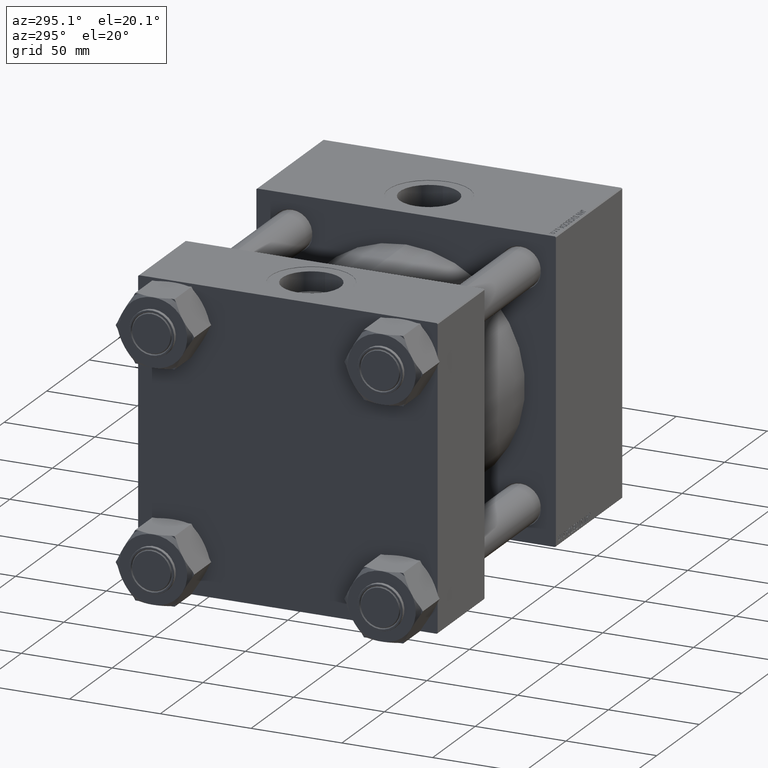
[diagram: clean part render]
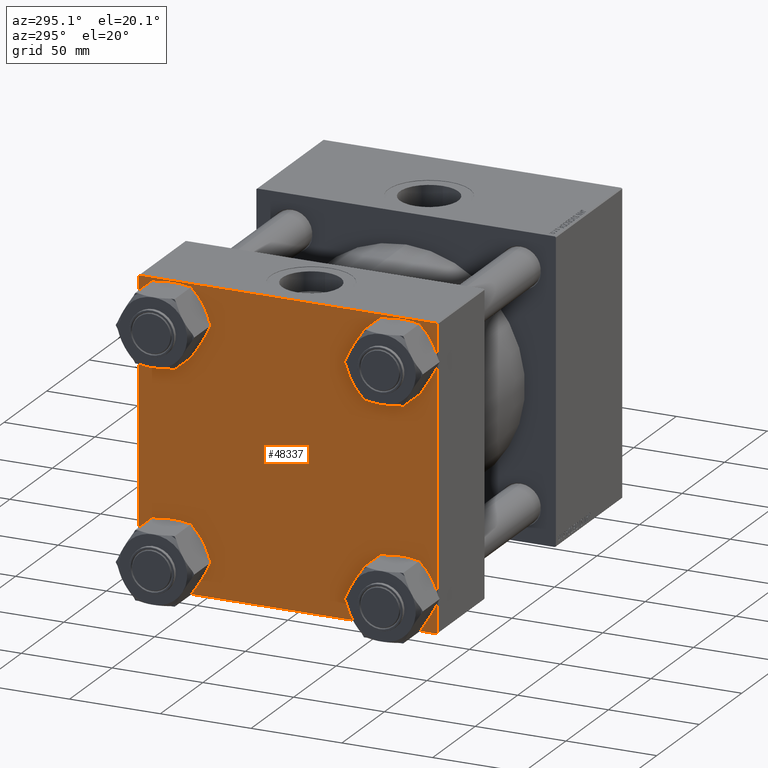
[diagram: same view with one face highlighted and labeled with its STEP entity id]
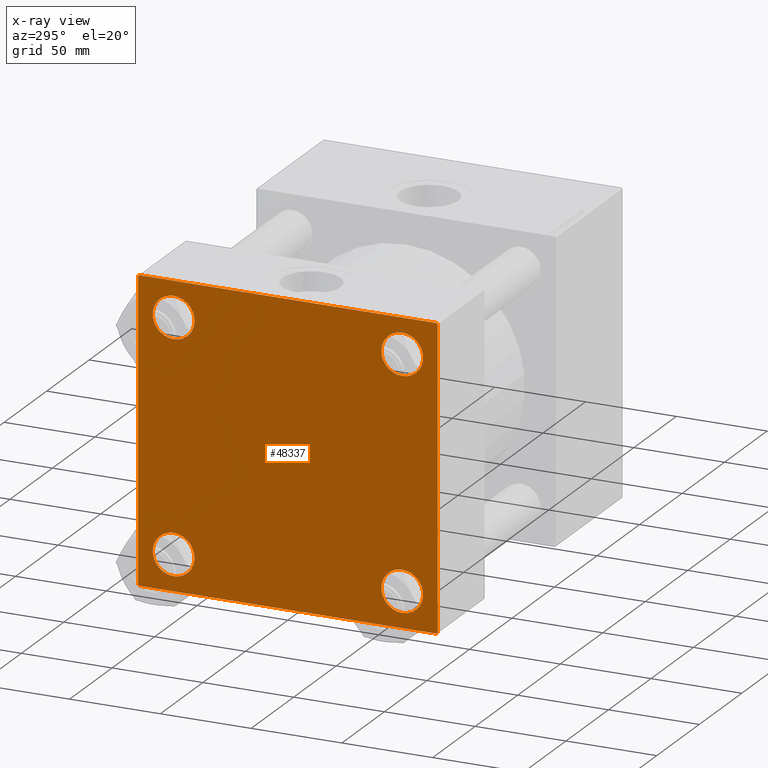
[diagram: x-ray of the same camera — body ghosted, the highlighted face saturated]
A machine part, auxiliary view. The second image highlights one B-rep face of the part: STEP entity #48337.
The next image is the same camera in x-ray: the body ghosted, the highlighted face saturated — about 0% of this face is hidden behind the body in this view.
In plain terms, the highlighted planar face has unit normal (-1, 0, 0).
Its self-contained STEP definition (entity closure, byte-faithful):
#286 = EDGE_CURVE ( 'NONE', #36203, #7209, #49370, .T. ) ;
#1147 = EDGE_CURVE ( 'NONE', #6335, #44852, #47048, .T. ) ;
#1291 = DIRECTION ( 'NONE',  ( -0.000000000000000000, -0.7071067811865474617, -0.7071067811865474617 ) ) ;
#1505 = DIRECTION ( 'NONE',  ( 0.000000000000000000, 0.000000000000000000, 1.000000000000000000 ) ) ;
#1629 = DIRECTION ( 'NONE',  ( -0.000000000000000000, 0.000000000000000000, 1.000000000000000000 ) ) ;
#1751 = DIRECTION ( 'NONE',  ( 0.000000000000000000, 0.000000000000000000, 1.000000000000000000 ) ) ;
#3373 = EDGE_CURVE ( 'NONE', #32868, #14952, #11275, .T. ) ;
#3603 = CARTESIAN_POINT ( 'NONE',  ( 0.000000000000000000, 82.50000000000001421, -82.49999999999998579 ) ) ;
#3898 = CARTESIAN_POINT ( 'NONE',  ( 0.000000000000000000, -62.94999999999996732, 74.45000000000011653 ) ) ;
#5473 = ORIENTED_EDGE ( 'NONE', *, *, #47906, .T. ) ;
#5509 = DIRECTION ( 'NONE',  ( 1.000000000000000000, 0.000000000000000000, 0.000000000000000000 ) ) ;
#6335 = VERTEX_POINT ( 'NONE', #37269 ) ;
#6510 = EDGE_CURVE ( 'NONE', #14952, #32868, #30758, .T. ) ;
#6859 = CARTESIAN_POINT ( 'NONE',  ( 0.000000000000000000, -82.24999999999883471, -82.25000000000112266 ) ) ;
#7120 = DIRECTION ( 'NONE',  ( 0.000000000000000000, 0.000000000000000000, 1.000000000000000000 ) ) ;
#7209 = VERTEX_POINT ( 'NONE', #25948 ) ;
#7312 = DIRECTION ( 'NONE',  ( 0.000000000000000000, 0.000000000000000000, 1.000000000000000000 ) ) ;
#7628 = CIRCLE ( 'NONE', #33898, 11.50000000000001066 ) ;
#7817 = CARTESIAN_POINT ( 'NONE',  ( 0.000000000000000000, 62.94999999999998863, 62.95000000000000284 ) ) ;
#9181 = DIRECTION ( 'NONE',  ( 1.000000000000000000, 0.000000000000000000, 0.000000000000000000 ) ) ;
#9834 = VECTOR ( 'NONE', #38520, 1000.000000000000000 ) ;
#10070 = VECTOR ( 'NONE', #38680, 999.9999999999998863 ) ;
#10097 = FACE_OUTER_BOUND ( 'NONE', #42306, .T. ) ;
#11275 = CIRCLE ( 'NONE', #46266, 11.50000000000009415 ) ;
#11344 = VERTEX_POINT ( 'NONE', #45167 ) ;
#11582 = CIRCLE ( 'NONE', #44396, 11.50000000000009415 ) ;
#12059 = VECTOR ( 'NONE', #23703, 1000.000000000000000 ) ;
#12820 = VERTEX_POINT ( 'NONE', #34434 ) ;
#13694 = FACE_BOUND ( 'NONE', #30947, .T. ) ;
#14075 = CIRCLE ( 'NONE', #14884, 11.50000000000001066 ) ;
#14203 = FACE_BOUND ( 'NONE', #43445, .T. ) ;
#14884 = AXIS2_PLACEMENT_3D ( 'NONE', #47163, #9181, #32039 ) ;
#14952 = VERTEX_POINT ( 'NONE', #3898 ) ;
#15148 = VERTEX_POINT ( 'NONE', #34863 ) ;
#15436 = EDGE_LOOP ( 'NONE', ( #21481, #5473 ) ) ;
#15577 = AXIS2_PLACEMENT_3D ( 'NONE', #38446, #42792, #7120 ) ;
#15736 = CARTESIAN_POINT ( 'NONE',  ( 0.000000000000000000, 62.94999999999998863, -62.95000000000000284 ) ) ;
#16298 = EDGE_CURVE ( 'NONE', #15148, #12820, #22764, .T. ) ;
#16469 = CARTESIAN_POINT ( 'NONE',  ( -0.000000000000000000, 82.25000000000001421, -82.25000000000001421 ) ) ;
#20111 = CARTESIAN_POINT ( 'NONE',  ( 0.000000000000000000, -82.49999999999998579, 82.49999999999995737 ) ) ;
#20216 = CARTESIAN_POINT ( 'NONE',  ( 0.000000000000000000, 82.00000000000004263, -82.49999999999998579 ) ) ;
#20458 = CARTESIAN_POINT ( 'NONE',  ( 0.000000000000000000, -62.94999999999996732, 51.44999999999992468 ) ) ;
#21269 = CARTESIAN_POINT ( 'NONE',  ( 0.000000000000000000, -62.94999999999996732, -62.95000000000001705 ) ) ;
#21481 = ORIENTED_EDGE ( 'NONE', *, *, #16298, .T. ) ;
#21509 = EDGE_CURVE ( 'NONE', #7209, #40895, #39018, .T. ) ;
#21727 = EDGE_CURVE ( 'NONE', #6335, #22803, #37708, .T. ) ;
#21771 = CARTESIAN_POINT ( 'NONE',  ( 0.000000000000000000, 62.94999999999998863, 74.45000000000001705 ) ) ;
#21878 = EDGE_CURVE ( 'NONE', #25986, #23158, #34437, .T. ) ;
#21928 = AXIS2_PLACEMENT_3D ( 'NONE', #25655, #22317, #33374 ) ;
#22060 = CARTESIAN_POINT ( 'NONE',  ( 0.000000000000000000, 82.50000000000001421, -82.00000000000001421 ) ) ;
#22209 = ORIENTED_EDGE ( 'NONE', *, *, #6510, .T. ) ;
#22317 = DIRECTION ( 'NONE',  ( 1.000000000000000000, 0.000000000000000000, 0.000000000000000000 ) ) ;
#22478 = DIRECTION ( 'NONE',  ( 1.000000000000000000, 0.000000000000000000, 0.000000000000000000 ) ) ;
#22764 = CIRCLE ( 'NONE', #21928, 11.50000000000009415 ) ;
#22803 = VERTEX_POINT ( 'NONE', #49205 ) ;
#23158 = VERTEX_POINT ( 'NONE', #25187 ) ;
#23176 = CIRCLE ( 'NONE', #34698, 11.50000000000009415 ) ;
#23215 = AXIS2_PLACEMENT_3D ( 'NONE', #41407, #48349, #1629 ) ;
#23703 = DIRECTION ( 'NONE',  ( 0.000000000000000000, 8.410780489584520404E-17, -1.000000000000000000 ) ) ;
#24271 = CARTESIAN_POINT ( 'NONE',  ( 0.000000000000000000, -62.94999999999996732, 62.95000000000001705 ) ) ;
#24375 = CARTESIAN_POINT ( 'NONE',  ( 0.000000000000000000, -62.94999999999996732, 62.95000000000001705 ) ) ;
#24494 = ORIENTED_EDGE ( 'NONE', *, *, #286, .T. ) ;
#24857 = ORIENTED_EDGE ( 'NONE', *, *, #25967, .T. ) ;
#25187 = CARTESIAN_POINT ( 'NONE',  ( 0.000000000000000000, 62.94999999999998863, -51.44999999999991047 ) ) ;
#25655 = CARTESIAN_POINT ( 'NONE',  ( 0.000000000000000000, -62.94999999999996732, -62.95000000000001705 ) ) ;
#25948 = CARTESIAN_POINT ( 'NONE',  ( 0.000000000000000000, 82.50000000000001421, 81.99999999999998579 ) ) ;
#25967 = EDGE_CURVE ( 'NONE', #39295, #11344, #39560, .T. ) ;
#25986 = VERTEX_POINT ( 'NONE', #42882 ) ;
#26794 = VERTEX_POINT ( 'NONE', #34515 ) ;
#28284 = EDGE_CURVE ( 'NONE', #36203, #22803, #34361, .T. ) ;
#28486 = EDGE_CURVE ( 'NONE', #23158, #25986, #11582, .T. ) ;
#28852 = VECTOR ( 'NONE', #1291, 1000.000000000000114 ) ;
#29114 = EDGE_CURVE ( 'NONE', #35856, #26794, #14075, .T. ) ;
#29365 = FACE_BOUND ( 'NONE', #36628, .T. ) ;
#29527 = VECTOR ( 'NONE', #29742, 1000.000000000000114 ) ;
#29742 = DIRECTION ( 'NONE',  ( -0.000000000000000000, 0.7071067811865474617, 0.7071067811865474617 ) ) ;
#30263 = ORIENTED_EDGE ( 'NONE', *, *, #21509, .T. ) ;
#30758 = CIRCLE ( 'NONE', #41400, 11.50000000000009415 ) ;
#30947 = EDGE_LOOP ( 'NONE', ( #22209, #49714 ) ) ;
#30966 = LINE ( 'NONE', #6859, #10070 ) ;
#32039 = DIRECTION ( 'NONE',  ( 0.000000000000000000, 0.000000000000000000, 1.000000000000000000 ) ) ;
#32868 = VERTEX_POINT ( 'NONE', #20458 ) ;
#32971 = ORIENTED_EDGE ( 'NONE', *, *, #1147, .F. ) ;
#33348 = CARTESIAN_POINT ( 'NONE',  ( -0.000000000000000000, -82.24999999999997158, 82.24999999999997158 ) ) ;
#33374 = DIRECTION ( 'NONE',  ( 0.000000000000000000, 0.000000000000000000, 1.000000000000000000 ) ) ;
#33731 = VECTOR ( 'NONE', #38454, 1000.000000000000000 ) ;
#33898 = AXIS2_PLACEMENT_3D ( 'NONE', #7817, #22478, #7312 ) ;
#34361 = LINE ( 'NONE', #34858, #33731 ) ;
#34434 = CARTESIAN_POINT ( 'NONE',  ( 0.000000000000000000, -62.94999999999996732, -74.45000000000011653 ) ) ;
#34437 = CIRCLE ( 'NONE', #15577, 11.50000000000009415 ) ;
#34515 = CARTESIAN_POINT ( 'NONE',  ( 0.000000000000000000, 62.94999999999998863, 51.44999999999999574 ) ) ;
#34698 = AXIS2_PLACEMENT_3D ( 'NONE', #21269, #36943, #1751 ) ;
#34817 = ORIENTED_EDGE ( 'NONE', *, *, #47126, .T. ) ;
#34858 = CARTESIAN_POINT ( 'NONE',  ( 0.000000000000000000, 82.50000000000001421, 82.49999999999998579 ) ) ;
#34863 = CARTESIAN_POINT ( 'NONE',  ( 0.000000000000000000, -62.94999999999996732, -51.44999999999992468 ) ) ;
#34894 = CARTESIAN_POINT ( 'NONE',  ( 0.000000000000000000, -82.49999999999997158, -81.99999999999998579 ) ) ;
#34939 = DIRECTION ( 'NONE',  ( 0.000000000000000000, -1.000000000000000000, 0.000000000000000000 ) ) ;
#35257 = CARTESIAN_POINT ( 'NONE',  ( 0.000000000000000000, 82.00000000000001421, 82.49999999999998579 ) ) ;
#35856 = VERTEX_POINT ( 'NONE', #21771 ) ;
#36203 = VERTEX_POINT ( 'NONE', #35257 ) ;
#36216 = ORIENTED_EDGE ( 'NONE', *, *, #28486, .T. ) ;
#36628 = EDGE_LOOP ( 'NONE', ( #38927, #47991 ) ) ;
#36943 = DIRECTION ( 'NONE',  ( 1.000000000000000000, 0.000000000000000000, 0.000000000000000000 ) ) ;
#37049 = VECTOR ( 'NONE', #34939, 1000.000000000000000 ) ;
#37269 = CARTESIAN_POINT ( 'NONE',  ( 0.000000000000000000, -82.49999999999998579, 81.99999999999995737 ) ) ;
#37708 = LINE ( 'NONE', #33348, #29527 ) ;
#37819 = ORIENTED_EDGE ( 'NONE', *, *, #21878, .T. ) ;
#38347 = CARTESIAN_POINT ( 'NONE',  ( -0.000000000000000000, 82.25000000000000000, 82.25000000000000000 ) ) ;
#38446 = CARTESIAN_POINT ( 'NONE',  ( 0.000000000000000000, 62.94999999999998863, -62.95000000000000284 ) ) ;
#38454 = DIRECTION ( 'NONE',  ( 0.000000000000000000, -1.000000000000000000, -1.682156097916903834E-16 ) ) ;
#38520 = DIRECTION ( 'NONE',  ( 0.000000000000000000, 0.000000000000000000, -1.000000000000000000 ) ) ;
#38680 = DIRECTION ( 'NONE',  ( 0.000000000000000000, -0.7071067811865574537, 0.7071067811865376918 ) ) ;
#38927 = ORIENTED_EDGE ( 'NONE', *, *, #29114, .T. ) ;
#39018 = LINE ( 'NONE', #42353, #9834 ) ;
#39295 = VERTEX_POINT ( 'NONE', #20216 ) ;
#39560 = LINE ( 'NONE', #3603, #37049 ) ;
#39685 = DIRECTION ( 'NONE',  ( 0.000000000000000000, 0.000000000000000000, 1.000000000000000000 ) ) ;
#40069 = LINE ( 'NONE', #16469, #28852 ) ;
#40542 = DIRECTION ( 'NONE',  ( 1.000000000000000000, 0.000000000000000000, 0.000000000000000000 ) ) ;
#40895 = VERTEX_POINT ( 'NONE', #22060 ) ;
#40976 = ORIENTED_EDGE ( 'NONE', *, *, #44711, .T. ) ;
#41400 = AXIS2_PLACEMENT_3D ( 'NONE', #24375, #40542, #1505 ) ;
#41407 = CARTESIAN_POINT ( 'NONE',  ( 0.000000000000000000, 0.000000000000000000, 0.000000000000000000 ) ) ;
#42306 = EDGE_LOOP ( 'NONE', ( #30263, #40976, #24857, #34817, #32971, #42392, #46347, #24494 ) ) ;
#42353 = CARTESIAN_POINT ( 'NONE',  ( 0.000000000000000000, 82.50000000000001421, 82.49999999999998579 ) ) ;
#42392 = ORIENTED_EDGE ( 'NONE', *, *, #21727, .T. ) ;
#42792 = DIRECTION ( 'NONE',  ( 1.000000000000000000, 0.000000000000000000, 0.000000000000000000 ) ) ;
#42882 = CARTESIAN_POINT ( 'NONE',  ( 0.000000000000000000, 62.94999999999998863, -74.45000000000010232 ) ) ;
#43198 = VECTOR ( 'NONE', #49864, 1000.000000000000114 ) ;
#43445 = EDGE_LOOP ( 'NONE', ( #36216, #37819 ) ) ;
#43453 = DIRECTION ( 'NONE',  ( 0.000000000000000000, 0.000000000000000000, 1.000000000000000000 ) ) ;
#44265 = PLANE ( 'NONE',  #23215 ) ;
#44396 = AXIS2_PLACEMENT_3D ( 'NONE', #15736, #47027, #43453 ) ;
#44711 = EDGE_CURVE ( 'NONE', #40895, #39295, #40069, .T. ) ;
#44852 = VERTEX_POINT ( 'NONE', #34894 ) ;
#45019 = FACE_BOUND ( 'NONE', #15436, .T. ) ;
#45167 = CARTESIAN_POINT ( 'NONE',  ( 0.000000000000000000, -81.99999999999995737, -82.49999999999998579 ) ) ;
#46266 = AXIS2_PLACEMENT_3D ( 'NONE', #24271, #5509, #39685 ) ;
#46347 = ORIENTED_EDGE ( 'NONE', *, *, #28284, .F. ) ;
#47027 = DIRECTION ( 'NONE',  ( 1.000000000000000000, 0.000000000000000000, 0.000000000000000000 ) ) ;
#47048 = LINE ( 'NONE', #20111, #12059 ) ;
#47126 = EDGE_CURVE ( 'NONE', #11344, #44852, #30966, .T. ) ;
#47163 = CARTESIAN_POINT ( 'NONE',  ( 0.000000000000000000, 62.94999999999998863, 62.95000000000000284 ) ) ;
#47906 = EDGE_CURVE ( 'NONE', #12820, #15148, #23176, .T. ) ;
#47991 = ORIENTED_EDGE ( 'NONE', *, *, #49142, .T. ) ;
#48337 = ADVANCED_FACE ( 'NONE', ( #13694, #45019, #14203, #29365, #10097 ), #44265, .T. ) ;
#48349 = DIRECTION ( 'NONE',  ( -1.000000000000000000, 0.000000000000000000, -0.000000000000000000 ) ) ;
#49142 = EDGE_CURVE ( 'NONE', #26794, #35856, #7628, .T. ) ;
#49205 = CARTESIAN_POINT ( 'NONE',  ( 0.000000000000000000, -81.99999999999998579, 82.49999999999995737 ) ) ;
#49370 = LINE ( 'NONE', #38347, #43198 ) ;
#49714 = ORIENTED_EDGE ( 'NONE', *, *, #3373, .T. ) ;
#49864 = DIRECTION ( 'NONE',  ( 0.000000000000000000, 0.7071067811865474617, -0.7071067811865474617 ) ) ;